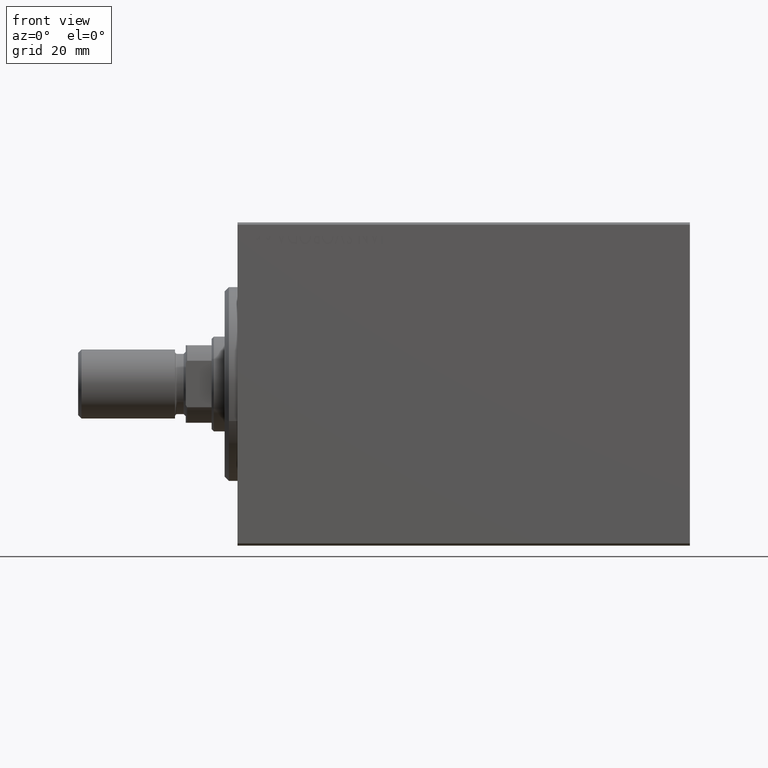
[diagram: clean part render]
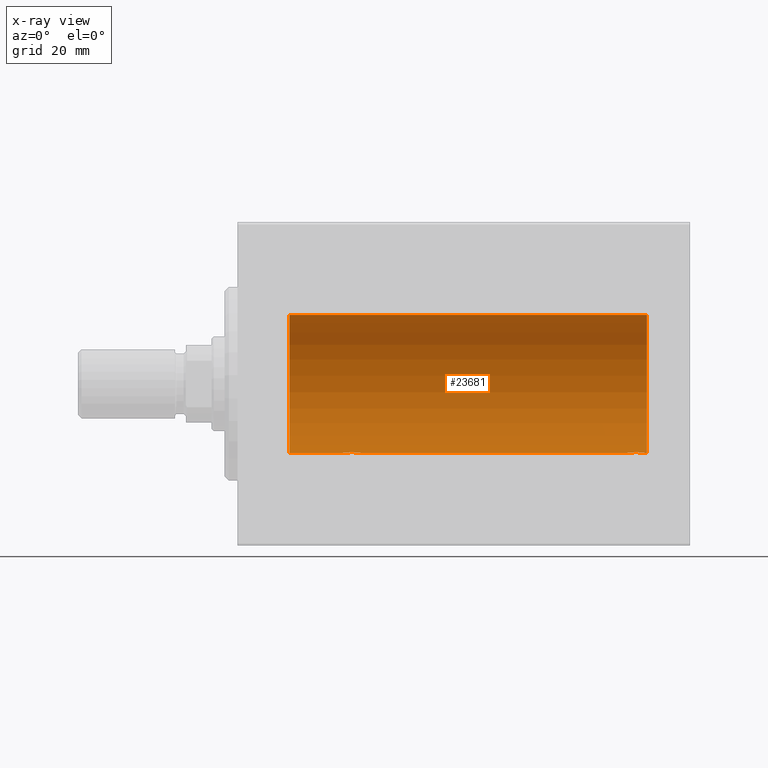
[diagram: x-ray — body ghosted, one internal face saturated and labeled with its STEP entity id]
A machine part, front view, then the same camera in x-ray: the body is ghosted and one INTERNAL B-rep face — a face not visible from any outside direction — is saturated and labeled: STEP entity #23681.
In plain terms, the highlighted cylindrical surface (partial cylindrical patch) has radius 16 mm, axis along (-1, -0, -0).
Its self-contained STEP definition (entity closure, byte-faithful):
#448 = CARTESIAN_POINT ( 'NONE',  ( 95.00000000000000000, 0.000000000000000000, 16.00000000000000000 ) ) ;
#470 = CARTESIAN_POINT ( 'NONE',  ( 28.29749928605041021, 0.8866640484200126737, -15.97587307151818514 ) ) ;
#496 = CARTESIAN_POINT ( 'NONE',  ( 11.99999999999999645, 1.959434878635765131E-15, -16.00000000000000000 ) ) ;
#850 = ORIENTED_EDGE ( 'NONE', *, *, #20037, .T. ) ;
#1871 = DIRECTION ( 'NONE',  ( -1.000000000000000000, -0.000000000000000000, -0.000000000000000000 ) ) ;
#1995 = CARTESIAN_POINT ( 'NONE',  ( 90.76431901501740640, 1.002241074716273106, -15.96895041604536125 ) ) ;
#2068 = VERTEX_POINT ( 'NONE', #448 ) ;
#2212 = CARTESIAN_POINT ( 'NONE',  ( 94.29749928605039599, 0.8866640484200093431, -15.97587307151818159 ) ) ;
#2433 = CARTESIAN_POINT ( 'NONE',  ( 90.50000000000000000, -8.578174582294765095E-15, -16.00000000000000000 ) ) ;
#2703 = CARTESIAN_POINT ( 'NONE',  ( 11.99999999999999645, 0.000000000000000000, 0.000000000000000000 ) ) ;
#3137 = VECTOR ( 'NONE', #22218, 1000.000000000000000 ) ;
#3171 = CARTESIAN_POINT ( 'NONE',  ( 27.01913097710113121, 1.935876924222081907, -15.88247600692093187 ) ) ;
#3622 = CARTESIAN_POINT ( 'NONE',  ( 27.38617757057270197, 1.797743958659261398, -15.89876304682112718 ) ) ;
#3721 = DIRECTION ( 'NONE',  ( -1.000000000000000000, -0.000000000000000000, -0.000000000000000000 ) ) ;
#3846 = EDGE_CURVE ( 'NONE', #4806, #24599, #11898, .T. ) ;
#4806 = VERTEX_POINT ( 'NONE', #18079 ) ;
#4917 = LINE ( 'NONE', #15256, #3137 ) ;
#5638 = DIRECTION ( 'NONE',  ( -1.000000000000000000, 0.000000000000000000, 0.000000000000000000 ) ) ;
#5670 = CARTESIAN_POINT ( 'NONE',  ( 24.51299475991586974, 0.2623312429553280034, -15.99836091803359750 ) ) ;
#5822 = CARTESIAN_POINT ( 'NONE',  ( 94.39783726498899341, 0.6445079780200548836, -15.98747331501412106 ) ) ;
#5823 = LINE ( 'NONE', #13225, #38490 ) ;
#6185 = EDGE_CURVE ( 'NONE', #2068, #21171, #12692, .T. ) ;
#6521 = ORIENTED_EDGE ( 'NONE', *, *, #30194, .F. ) ;
#6548 = CARTESIAN_POINT ( 'NONE',  ( 27.82075824828932653, 1.507649250492135717, -15.92908549642227101 ) ) ;
#6764 = CARTESIAN_POINT ( 'NONE',  ( 28.49999999999999645, 1.959434851239213200E-15, -16.00000000000000000 ) ) ;
#7217 = CARTESIAN_POINT ( 'NONE',  ( 28.09001528100123579, 1.220169175415121154, -15.95377581882983975 ) ) ;
#8527 = CARTESIAN_POINT ( 'NONE',  ( 94.49999999999997158, 0.1305944228192316703, -16.00000000000000000 ) ) ;
#8742 = CARTESIAN_POINT ( 'NONE',  ( 94.09001528100122869, 1.220169175415118712, -15.95377581882983442 ) ) ;
#8963 = CARTESIAN_POINT ( 'NONE',  ( 92.23808537237746918, 1.999903730784148737, -15.87451999516786216 ) ) ;
#9408 = CARTESIAN_POINT ( 'NONE',  ( 94.00737160312429808, 1.321075116345882261, -15.94564302722883298 ) ) ;
#9924 = CARTESIAN_POINT ( 'NONE',  ( 25.27043888260214999, 1.598790766515153061, -15.92099550861380486 ) ) ;
#9933 = CARTESIAN_POINT ( 'NONE',  ( 11.99999999999999645, 0.000000000000000000, 16.00000000000000000 ) ) ;
#10141 = CARTESIAN_POINT ( 'NONE',  ( 26.23808537237744787, 1.999903730784160505, -15.87451999516786216 ) ) ;
#10366 = CARTESIAN_POINT ( 'NONE',  ( 28.48690924832126470, 0.2632563459770842496, -15.99834873924246814 ) ) ;
#11214 = EDGE_CURVE ( 'NONE', #11935, #24599, #5823, .T. ) ;
#11898 = B_SPLINE_CURVE_WITH_KNOTS ( 'NONE', 3,
 ( #29470, #36442, #5670, #19393, #29687, #44045, #33952, #20491, #37540, #9924, #37319, #40909, #10141, #13296, #23848, #3171, #37768, #3622, #26991, #24067, #6548, #30807, #7217, #40692, #470, #20271, #23407, #10366, #27435, #6764 ),
 .UNSPECIFIED., .F., .F.,
 ( 4, 2, 2, 2, 2, 2, 2, 2, 2, 2, 2, 2, 2, 2, 4 ),
 ( 6.061354251518217081E-19, 0.0003911894522871152153, 0.0007823789045742298885, 0.001173568356861344345, 0.001564757809148459126, 0.002347136713722688690, 0.003129515618296918687, 0.003520705070584038889, 0.003911894522871159526, 0.004303083975158279728, 0.004694273427445399931, 0.005085462879732520133, 0.005476652332019640336, 0.005867841784306760539, 0.006259031236593880741 ),
 .UNSPECIFIED. ) ;
#11901 = CARTESIAN_POINT ( 'NONE',  ( 92.76251583007899626, 1.987008272775784290, -15.87616016863256974 ) ) ;
#11935 = VERTEX_POINT ( 'NONE', #34630 ) ;
#12525 = DIRECTION ( 'NONE',  ( -1.000000000000000000, -0.000000000000000000, -0.000000000000000000 ) ) ;
#12560 = CARTESIAN_POINT ( 'NONE',  ( 90.70286585251780309, 0.8874076679346646346, -15.97583181162461052 ) ) ;
#12593 = LINE ( 'NONE', #26292, #18912 ) ;
#12612 = DIRECTION ( 'NONE',  ( -1.000000000000000000, 0.000000000000000000, 0.000000000000000000 ) ) ;
#12692 = CIRCLE ( 'NONE', #31352, 16.00000000000000000 ) ;
#13225 = CARTESIAN_POINT ( 'NONE',  ( 95.00000000000000000, 1.959434878635765131E-15, -16.00000000000000000 ) ) ;
#13296 = CARTESIAN_POINT ( 'NONE',  ( 26.62985308350499025, 2.000047931387146871, -15.87450182760079898 ) ) ;
#14696 = AXIS2_PLACEMENT_3D ( 'NONE', #29586, #12525, #26219 ) ;
#14940 = CARTESIAN_POINT ( 'NONE',  ( 95.00000000000000000, 1.959434878635765131E-15, -16.00000000000000000 ) ) ;
#15256 = CARTESIAN_POINT ( 'NONE',  ( 95.00000000000000000, 1.959434878635765131E-15, -16.00000000000000000 ) ) ;
#15949 = CARTESIAN_POINT ( 'NONE',  ( 94.43569052926127938, 0.5198215460038742020, -15.99206840425678955 ) ) ;
#16374 = ORIENTED_EDGE ( 'NONE', *, *, #11214, .F. ) ;
#16396 = CARTESIAN_POINT ( 'NONE',  ( 90.90948495147900132, 1.219564485341759319, -15.95382484008322344 ) ) ;
#17500 = CARTESIAN_POINT ( 'NONE',  ( 95.00000000000000000, 0.000000000000000000, 0.000000000000000000 ) ) ;
#18079 = CARTESIAN_POINT ( 'NONE',  ( 24.50000000000000000, -2.103177090749212087E-15, -16.00000000000000000 ) ) ;
#18912 = VECTOR ( 'NONE', #39989, 1000.000000000000000 ) ;
#19101 = CARTESIAN_POINT ( 'NONE',  ( 93.71967657442274913, 1.590393755195998793, -15.92092783521423982 ) ) ;
#19328 = CARTESIAN_POINT ( 'NONE',  ( 93.38617757057269841, 1.797743958659253183, -15.89876304682112362 ) ) ;
#19393 = CARTESIAN_POINT ( 'NONE',  ( 24.56388673317936622, 0.5181437283162044771, -15.99211983514074653 ) ) ;
#20037 = EDGE_CURVE ( 'NONE', #2068, #23093, #12593, .T. ) ;
#20271 = CARTESIAN_POINT ( 'NONE',  ( 28.39783726498896144, 0.6445079780200569930, -15.98747331501412816 ) ) ;
#20302 = EDGE_CURVE ( 'NONE', #4806, #38805, #4917, .T. ) ;
#20491 = CARTESIAN_POINT ( 'NONE',  ( 24.90948495147900843, 1.219564485341768867, -15.95382484008323054 ) ) ;
#21171 = VERTEX_POINT ( 'NONE', #29508 ) ;
#22218 = DIRECTION ( 'NONE',  ( -1.000000000000000000, -0.000000000000000000, -0.000000000000000000 ) ) ;
#22678 = CARTESIAN_POINT ( 'NONE',  ( 94.48690924832123983, 0.2632563459770844716, -15.99834873924246459 ) ) ;
#22898 = CARTESIAN_POINT ( 'NONE',  ( 90.60241129944407135, 0.6452446332038024313, -15.98744362947834929 ) ) ;
#23093 = VERTEX_POINT ( 'NONE', #9933 ) ;
#23334 = VECTOR ( 'NONE', #1871, 1000.000000000000000 ) ;
#23407 = CARTESIAN_POINT ( 'NONE',  ( 28.43569052926130425, 0.5198215460038758673, -15.99206840425679665 ) ) ;
#23681 = ADVANCED_FACE ( 'NONE', ( #39476 ), #26003, .F. ) ;
#23848 = CARTESIAN_POINT ( 'NONE',  ( 26.76251583007899271, 1.987008272775795614, -15.87616016863256263 ) ) ;
#24067 = CARTESIAN_POINT ( 'NONE',  ( 27.71967657442277044, 1.590393755196006786, -15.92092783521423627 ) ) ;
#24599 = VERTEX_POINT ( 'NONE', #42793 ) ;
#25164 = CARTESIAN_POINT ( 'NONE',  ( 94.50000000000000000, 1.959434851248285101E-15, -16.00000000000000000 ) ) ;
#25603 = CARTESIAN_POINT ( 'NONE',  ( 93.14386968033014114, 1.898058445420880869, -15.88709929148890687 ) ) ;
#25822 = CARTESIAN_POINT ( 'NONE',  ( 90.99389287531755599, 1.322357532253810364, -15.94553003295878391 ) ) ;
#26003 = CYLINDRICAL_SURFACE ( 'NONE', #14696, 16.00000000000000000 ) ;
#26035 = CARTESIAN_POINT ( 'NONE',  ( 90.50000000000001421, 0.1322838750249152873, -16.00000000000000000 ) ) ;
#26219 = DIRECTION ( 'NONE',  ( 0.000000000000000000, 0.000000000000000000, 1.000000000000000000 ) ) ;
#26255 = CARTESIAN_POINT ( 'NONE',  ( 91.97468243540599531, 1.947280337074155820, -15.88137861827787134 ) ) ;
#26292 = CARTESIAN_POINT ( 'NONE',  ( 95.00000000000000000, 0.000000000000000000, 16.00000000000000000 ) ) ;
#26481 = CARTESIAN_POINT ( 'NONE',  ( 91.49340818440418843, 1.747750603376292178, -15.90457341008071701 ) ) ;
#26736 = DIRECTION ( 'NONE',  ( 0.000000000000000000, 0.000000000000000000, 1.000000000000000000 ) ) ;
#26947 = ORIENTED_EDGE ( 'NONE', *, *, #3846, .T. ) ;
#26991 = CARTESIAN_POINT ( 'NONE',  ( 27.50311247035039486, 1.735145127817748989, -15.90580292899658765 ) ) ;
#27435 = CARTESIAN_POINT ( 'NONE',  ( 28.50000000000001066, 0.1305944228192323919, -16.00000000000000711 ) ) ;
#27789 = ORIENTED_EDGE ( 'NONE', *, *, #6185, .F. ) ;
#29143 = EDGE_CURVE ( 'NONE', #23093, #38805, #31933, .T. ) ;
#29183 = CARTESIAN_POINT ( 'NONE',  ( 92.62985308350499736, 2.000047931387135325, -15.87450182760080253 ) ) ;
#29470 = CARTESIAN_POINT ( 'NONE',  ( 24.50000000000000000, -2.103177090749212087E-15, -16.00000000000000000 ) ) ;
#29508 = CARTESIAN_POINT ( 'NONE',  ( 95.00000000000000000, 1.959434878635765131E-15, -16.00000000000000000 ) ) ;
#29586 = CARTESIAN_POINT ( 'NONE',  ( 95.00000000000000000, 0.000000000000000000, 0.000000000000000000 ) ) ;
#29687 = CARTESIAN_POINT ( 'NONE',  ( 24.60241129944407135, 0.6452446332038132004, -15.98744362947834929 ) ) ;
#30194 = EDGE_CURVE ( 'NONE', #21171, #33587, #32434, .T. ) ;
#30807 = CARTESIAN_POINT ( 'NONE',  ( 28.00737160312429452, 1.321075116345886924, -15.94564302722882942 ) ) ;
#31352 = AXIS2_PLACEMENT_3D ( 'NONE', #17500, #12612, #37685 ) ;
#31933 = CIRCLE ( 'NONE', #39104, 16.00000000000000000 ) ;
#32434 = LINE ( 'NONE', #14940, #23334 ) ;
#33587 = VERTEX_POINT ( 'NONE', #25164 ) ;
#33952 = CARTESIAN_POINT ( 'NONE',  ( 24.76431901501739219, 1.002241074716281766, -15.96895041604536658 ) ) ;
#34630 = CARTESIAN_POINT ( 'NONE',  ( 90.50000000000000000, -8.578174582294765095E-15, -16.00000000000000000 ) ) ;
#36220 = ORIENTED_EDGE ( 'NONE', *, *, #20302, .F. ) ;
#36371 = CARTESIAN_POINT ( 'NONE',  ( 93.01913097710109923, 1.935876924222071249, -15.88247600692093187 ) ) ;
#36442 = CARTESIAN_POINT ( 'NONE',  ( 24.50000000000000000, 0.1322838750249236695, -16.00000000000000000 ) ) ;
#36508 = ORIENTED_EDGE ( 'NONE', *, *, #29143, .T. ) ;
#36590 = CARTESIAN_POINT ( 'NONE',  ( 94.50000000000000000, 1.959434851248285101E-15, -16.00000000000000000 ) ) ;
#36813 = CARTESIAN_POINT ( 'NONE',  ( 93.50311247035041617, 1.735145127817740551, -15.90580292899659121 ) ) ;
#37319 = CARTESIAN_POINT ( 'NONE',  ( 25.49340818440418488, 1.747750603376301726, -15.90457341008072056 ) ) ;
#37540 = CARTESIAN_POINT ( 'NONE',  ( 24.99389287531753823, 1.322357532253824131, -15.94553003295876970 ) ) ;
#37685 = DIRECTION ( 'NONE',  ( 0.000000000000000000, 0.000000000000000000, 1.000000000000000000 ) ) ;
#37768 = CARTESIAN_POINT ( 'NONE',  ( 27.14386968033013758, 1.898058445420889750, -15.88709929148890510 ) ) ;
#38490 = VECTOR ( 'NONE', #3721, 1000.000000000000000 ) ;
#38805 = VERTEX_POINT ( 'NONE', #496 ) ;
#39104 = AXIS2_PLACEMENT_3D ( 'NONE', #2703, #5638, #26736 ) ;
#39476 = FACE_OUTER_BOUND ( 'NONE', #42641, .T. ) ;
#39511 = CARTESIAN_POINT ( 'NONE',  ( 93.82075824828930877, 1.507649250492129500, -15.92908549642227101 ) ) ;
#39726 = CARTESIAN_POINT ( 'NONE',  ( 90.51299475991585552, 0.2623312429553206759, -15.99836091803360105 ) ) ;
#39989 = DIRECTION ( 'NONE',  ( -1.000000000000000000, -0.000000000000000000, -0.000000000000000000 ) ) ;
#40170 = CARTESIAN_POINT ( 'NONE',  ( 91.27043888260214999, 1.598790766515138406, -15.92099550861380841 ) ) ;
#40692 = CARTESIAN_POINT ( 'NONE',  ( 28.23482670674955486, 1.003662148334367954, -15.96885838080210718 ) ) ;
#40909 = CARTESIAN_POINT ( 'NONE',  ( 25.97468243540595623, 1.947280337074166257, -15.88137861827786779 ) ) ;
#41018 = B_SPLINE_CURVE_WITH_KNOTS ( 'NONE', 3,
 ( #2433, #26035, #39726, #43312, #22898, #12560, #1995, #16396, #25822, #40170, #26481, #26255, #8963, #29183, #11901, #36371, #25603, #19328, #36813, #19101, #39511, #9408, #8742, #42884, #2212, #5822, #15949, #22678, #8527, #36590 ),
 .UNSPECIFIED., .F., .F.,
 ( 4, 2, 2, 2, 2, 2, 2, 2, 2, 2, 2, 2, 2, 2, 4 ),
 ( 2.346188884146258758E-18, 0.0003911894522871310989, 0.0007823789045742598125, 0.001173568356861387930, 0.001564757809148516155, 0.002347136713722742900, 0.003129515618296970728, 0.003520705070584084426, 0.003911894522871197689, 0.004303083975158311821, 0.004694273427445424217, 0.005085462879732538348, 0.005476652332019651612, 0.005867841784306764875, 0.006259031236593878139 ),
 .UNSPECIFIED. ) ;
#41151 = ORIENTED_EDGE ( 'NONE', *, *, #43621, .T. ) ;
#42641 = EDGE_LOOP ( 'NONE', ( #6521, #27789, #850, #36508, #36220, #26947, #16374, #41151 ) ) ;
#42793 = CARTESIAN_POINT ( 'NONE',  ( 28.49999999999999645, 1.959434851239213200E-15, -16.00000000000000000 ) ) ;
#42884 = CARTESIAN_POINT ( 'NONE',  ( 94.23482670674955841, 1.003662148334367510, -15.96885838080210718 ) ) ;
#43312 = CARTESIAN_POINT ( 'NONE',  ( 90.56388673317935911, 0.5181437283161969276, -15.99211983514074653 ) ) ;
#43621 = EDGE_CURVE ( 'NONE', #11935, #33587, #41018, .T. ) ;
#44045 = CARTESIAN_POINT ( 'NONE',  ( 24.70286585251779954, 0.8874076679346754037, -15.97583181162461408 ) ) ;